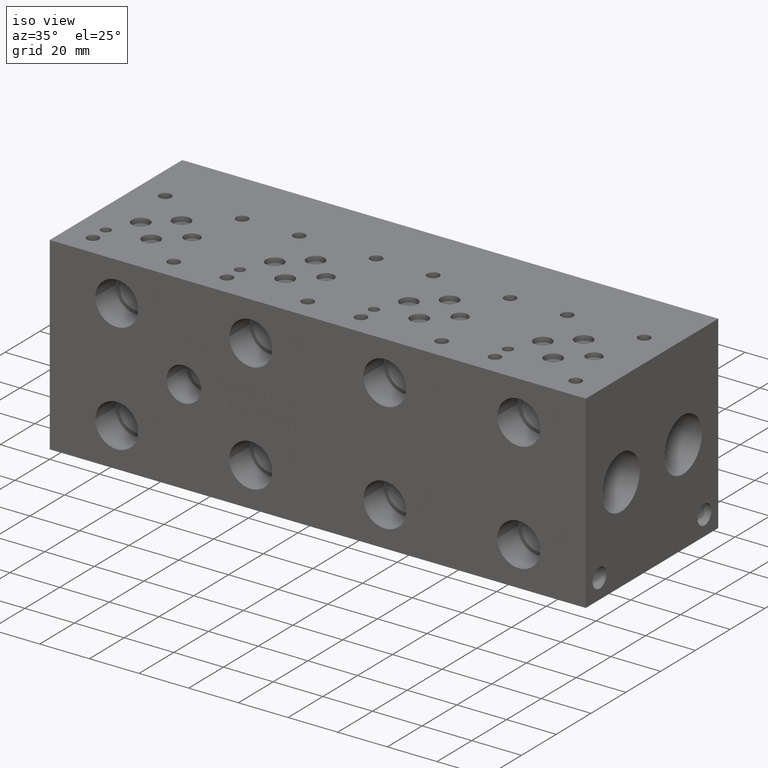
[diagram: clean part render]
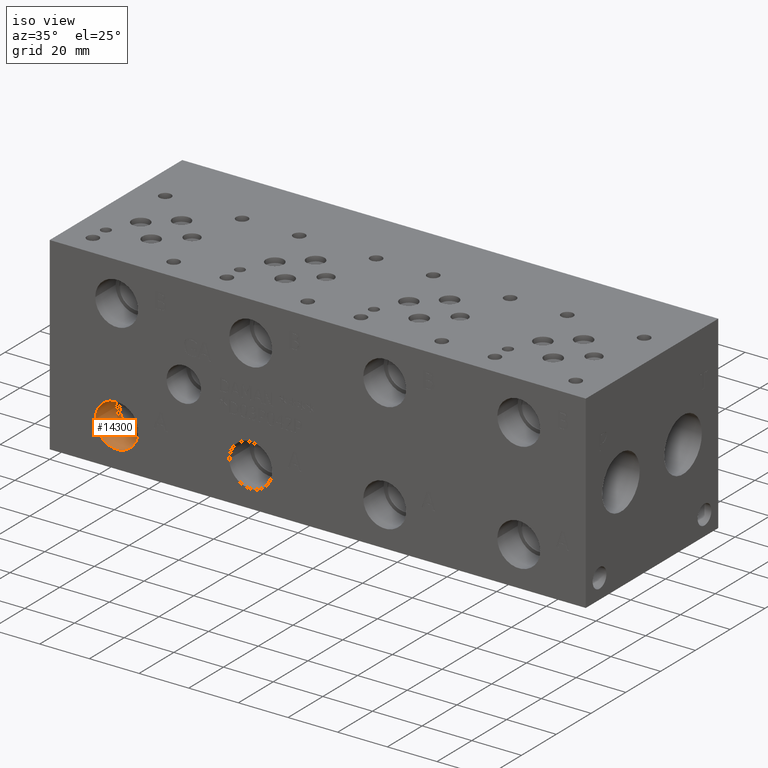
[diagram: same view with one face highlighted and labeled with its STEP entity id]
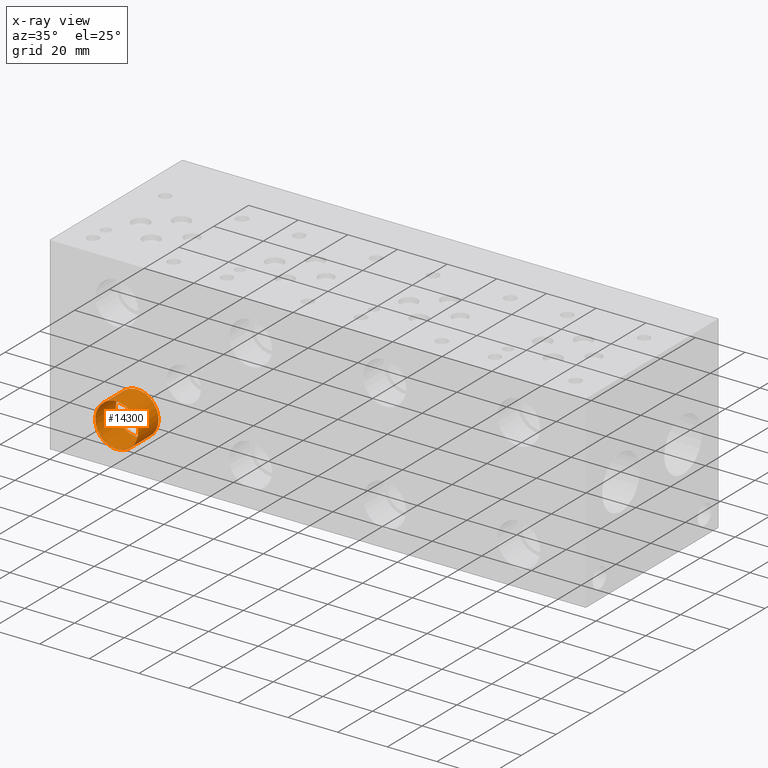
[diagram: x-ray of the same camera — body ghosted, the highlighted face saturated]
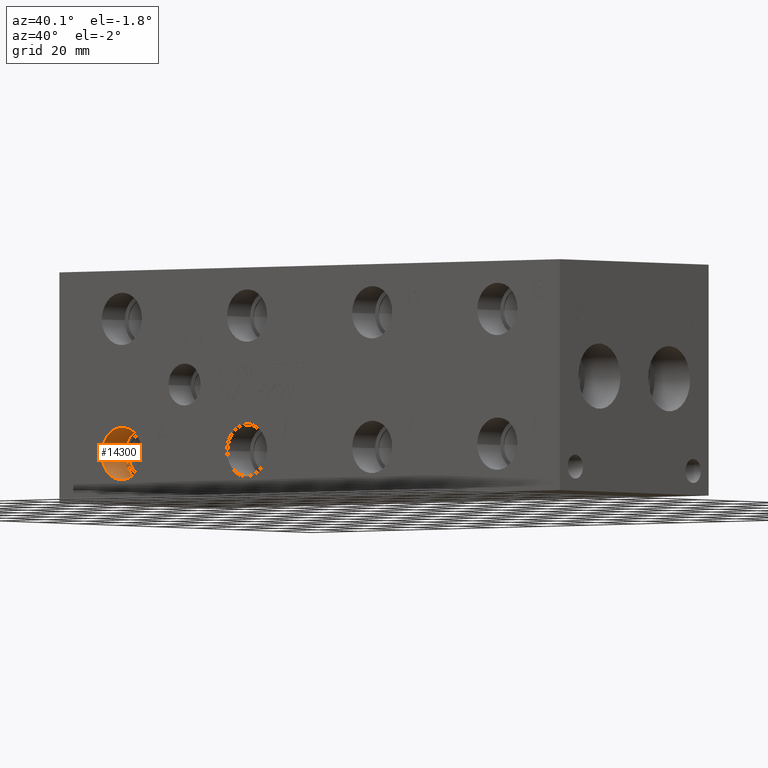
[diagram: same view with one face highlighted and labeled with its STEP entity id]
A machine part, iso view. The second image highlights one B-rep face of the part: STEP entity #14300.
The next image is the same camera in x-ray: the body ghosted, the highlighted face saturated — about 0% of this face is hidden behind the body in this view.
A second angle (auxiliary view) of the same face is appended — the face is thin or edge-on in the first view.
In plain terms, the highlighted cylindrical surface (bore or boss wall) has radius 8.6487 mm, axis along (0, -1, 0).
Its self-contained STEP definition (entity closure, byte-faithful):
#76=CYLINDRICAL_SURFACE('',#15137,8.6487);
#171=CIRCLE('',#14462,8.6487);
#172=CIRCLE('',#14463,8.6487);
#414=CIRCLE('',#15134,8.6487);
#415=CIRCLE('',#15135,8.6487);
#1725=FACE_OUTER_BOUND('',#2559,.T.);
#2559=EDGE_LOOP('',(#12565,#12566,#12567,#12568,#12569,#12570));
#3927=LINE('',#24430,#5233);
#5233=VECTOR('',#18055,8.6487);
#5993=VERTEX_POINT('',#20489);
#5994=VERTEX_POINT('',#20490);
#6919=VERTEX_POINT('',#24423);
#6920=VERTEX_POINT('',#24424);
#7517=EDGE_CURVE('',#5993,#5994,#171,.T.);
#7518=EDGE_CURVE('',#5994,#5993,#172,.T.);
#8858=EDGE_CURVE('',#6919,#6920,#414,.T.);
#8859=EDGE_CURVE('',#6920,#6919,#415,.T.);
#8861=EDGE_CURVE('',#5994,#6920,#3927,.T.);
#12565=ORIENTED_EDGE('',*,*,#7517,.F.);
#12566=ORIENTED_EDGE('',*,*,#7518,.F.);
#12567=ORIENTED_EDGE('',*,*,#8861,.T.);
#12568=ORIENTED_EDGE('',*,*,#8858,.F.);
#12569=ORIENTED_EDGE('',*,*,#8859,.F.);
#12570=ORIENTED_EDGE('',*,*,#8861,.F.);
#14300=ADVANCED_FACE('',(#1725),#76,.F.);
#14462=AXIS2_PLACEMENT_3D('',#20491,#15767,#15768);
#14463=AXIS2_PLACEMENT_3D('',#20492,#15769,#15770);
#15134=AXIS2_PLACEMENT_3D('',#24425,#18047,#18048);
#15135=AXIS2_PLACEMENT_3D('',#24426,#18049,#18050);
#15137=AXIS2_PLACEMENT_3D('',#24429,#18053,#18054);
#15767=DIRECTION('center_axis',(0.,1.,0.));
#15768=DIRECTION('ref_axis',(1.,0.,0.));
#15769=DIRECTION('center_axis',(0.,1.,0.));
#15770=DIRECTION('ref_axis',(1.,0.,0.));
#18047=DIRECTION('center_axis',(0.,-1.,0.));
#18048=DIRECTION('ref_axis',(1.,0.,0.));
#18049=DIRECTION('center_axis',(0.,-1.,0.));
#18050=DIRECTION('ref_axis',(1.,0.,0.));
#18053=DIRECTION('center_axis',(0.,-1.,0.));
#18054=DIRECTION('ref_axis',(1.,0.,0.));
#18055=DIRECTION('',(0.,1.,0.));
#20489=CARTESIAN_POINT('',(35.6235,0.,15.875));
#20490=CARTESIAN_POINT('',(18.3261,0.,15.875));
#20491=CARTESIAN_POINT('Origin',(26.9748,0.,15.875));
#20492=CARTESIAN_POINT('Origin',(26.9748,0.,15.875));
#24423=CARTESIAN_POINT('',(35.6235,11.7348,15.875));
#24424=CARTESIAN_POINT('',(18.3261,11.7348,15.875));
#24425=CARTESIAN_POINT('Origin',(26.9748,11.7348,15.875));
#24426=CARTESIAN_POINT('Origin',(26.9748,11.7348,15.875));
#24429=CARTESIAN_POINT('Origin',(26.9748,5.8674,15.875));
#24430=CARTESIAN_POINT('',(18.3261,5.8674,15.875));